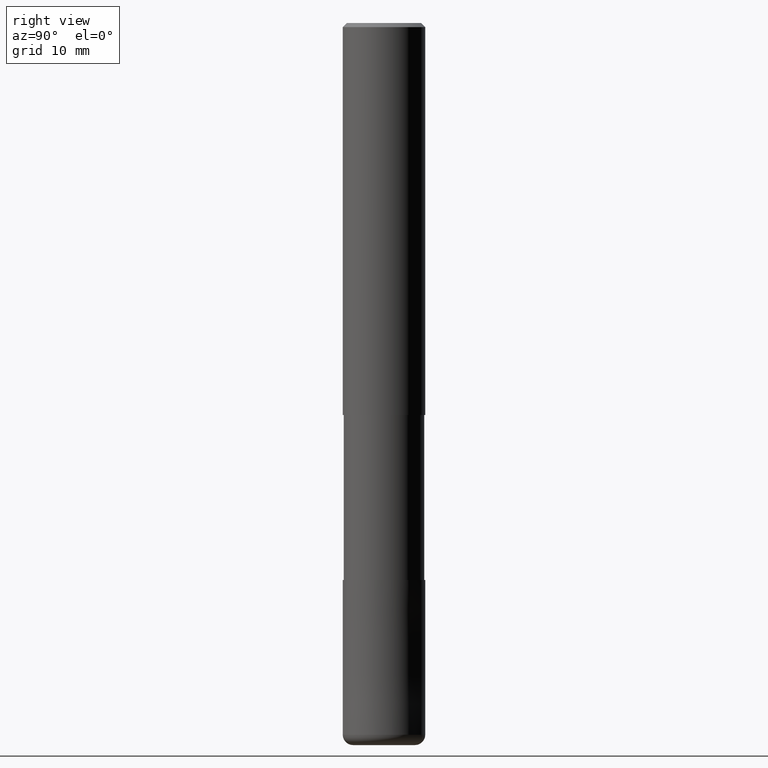
[diagram: clean part render]
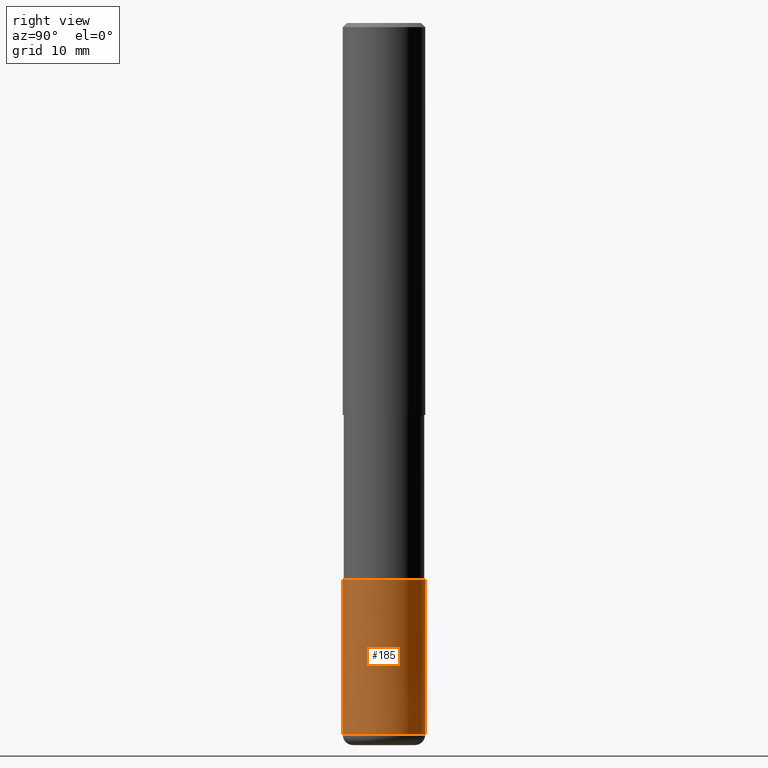
[diagram: same view with one face highlighted and labeled with its STEP entity id]
A machine part, right view. The second image highlights one B-rep face of the part: STEP entity #185.
In plain terms, the highlighted conical surface has half-angle 0 deg.
Its self-contained STEP definition (entity closure, byte-faithful):
#133=EDGE_CURVE('',#203,#239,#322,.T.);
#143=VERTEX_POINT('',#332);
#153=EDGE_CURVE('',#203,#143,#343,.T.);
#185=ADVANCED_FACE('',(#381),#382,.T.);
#189=VERTEX_POINT('',#386);
#203=VERTEX_POINT('',#400);
#239=VERTEX_POINT('',#445);
#261=EDGE_CURVE('',#189,#239,#470,.T.);
#273=EDGE_CURVE('',#143,#189,#483,.T.);
#322=CIRCLE('',#528,3.9999);
#332=CARTESIAN_POINT('',(0.0,4.0,-69.0));
#343=LINE('',#554,#555);
#381=FACE_OUTER_BOUND('',#603,.T.);
#382=CONICAL_SURFACE('',#604,3.99995,6.66666666658197E-006);
#386=CARTESIAN_POINT('',(4.89842541528951E-016,-4.0,-69.0));
#400=CARTESIAN_POINT('',(0.0,3.9999,-54.0));
#445=CARTESIAN_POINT('',(4.89830295465413E-016,-3.9999,-54.0));
#470=LINE('',#711,#712);
#483=CIRCLE('',#732,4.0);
#528=AXIS2_PLACEMENT_3D('',#771,#772,#773);
#554=CARTESIAN_POINT('',(-4.89836418497182E-016,3.99995,-61.5));
#555=VECTOR('',#794,1.0);
#603=EDGE_LOOP('',(#850,#851,#852,#853));
#604=AXIS2_PLACEMENT_3D('',#854,#855,#856);
#711=CARTESIAN_POINT('',(4.89836418497182E-016,-3.99995,-61.5));
#712=VECTOR('',#961,1.0);
#732=AXIS2_PLACEMENT_3D('',#978,#979,#980);
#771=CARTESIAN_POINT('',(0.0,0.0,-54.0));
#772=DIRECTION('',(0.0,0.0,-1.0));
#773=DIRECTION('',(0.0,1.0,0.0));
#794=DIRECTION('',(-8.16404235865165E-022,6.66666666653259E-006,-0.999999999977778));
#850=ORIENTED_EDGE('',*,*,#153,.F.);
#851=ORIENTED_EDGE('',*,*,#133,.T.);
#852=ORIENTED_EDGE('',*,*,#261,.F.);
#853=ORIENTED_EDGE('',*,*,#273,.F.);
#854=CARTESIAN_POINT('',(0.0,0.0,-61.5));
#855=DIRECTION('',(0.0,-0.0,-1.0));
#856=DIRECTION('',(0.0,1.0,0.0));
#961=DIRECTION('',(-8.16404235865165E-022,6.66666666653259E-006,0.999999999977778));
#978=CARTESIAN_POINT('',(0.0,0.0,-69.0));
#979=DIRECTION('',(0.0,0.0,-1.0));
#980=DIRECTION('',(0.0,1.0,0.0));